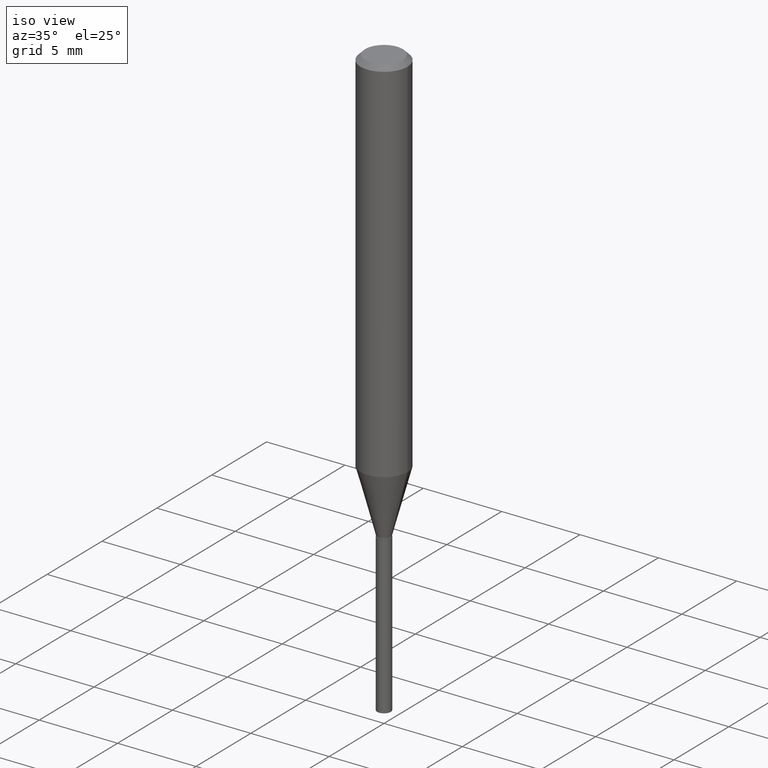
[diagram: clean part render]
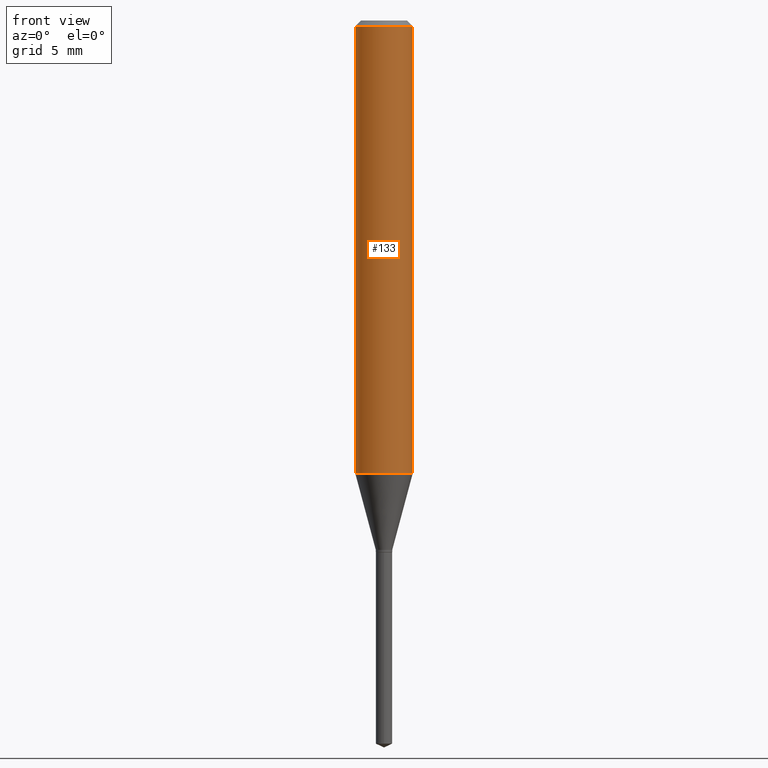
[diagram: tour spotlight — one face highlighted and labeled with its STEP entity id]
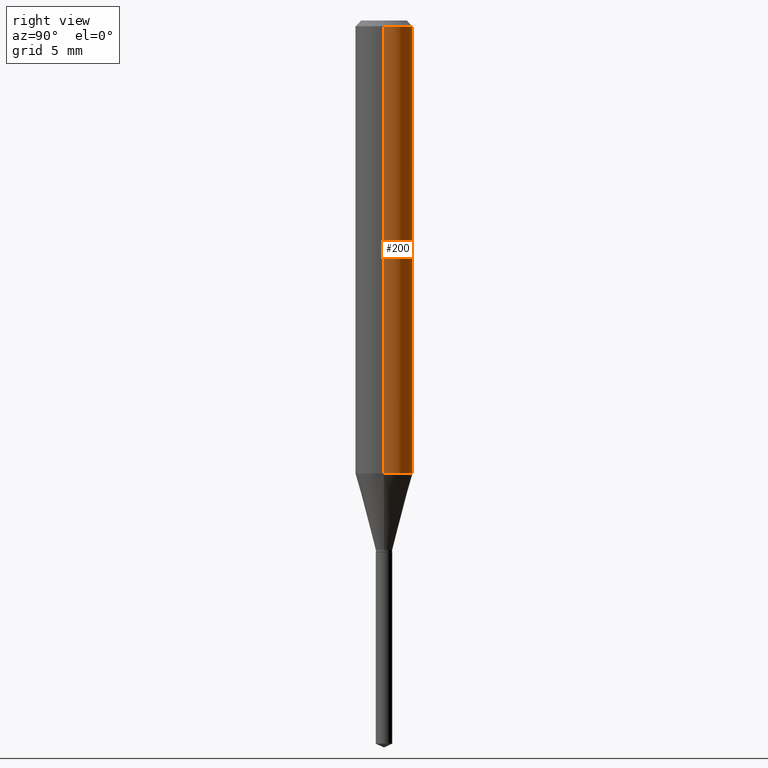
[diagram: tour spotlight — one face highlighted and labeled with its STEP entity id]
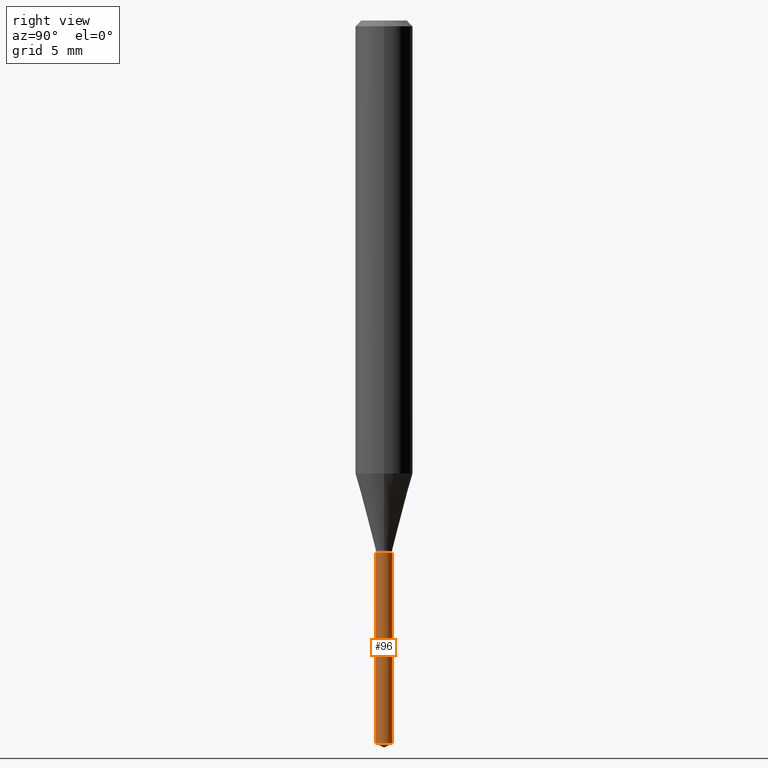
[diagram: tour spotlight — one face highlighted and labeled with its STEP entity id]
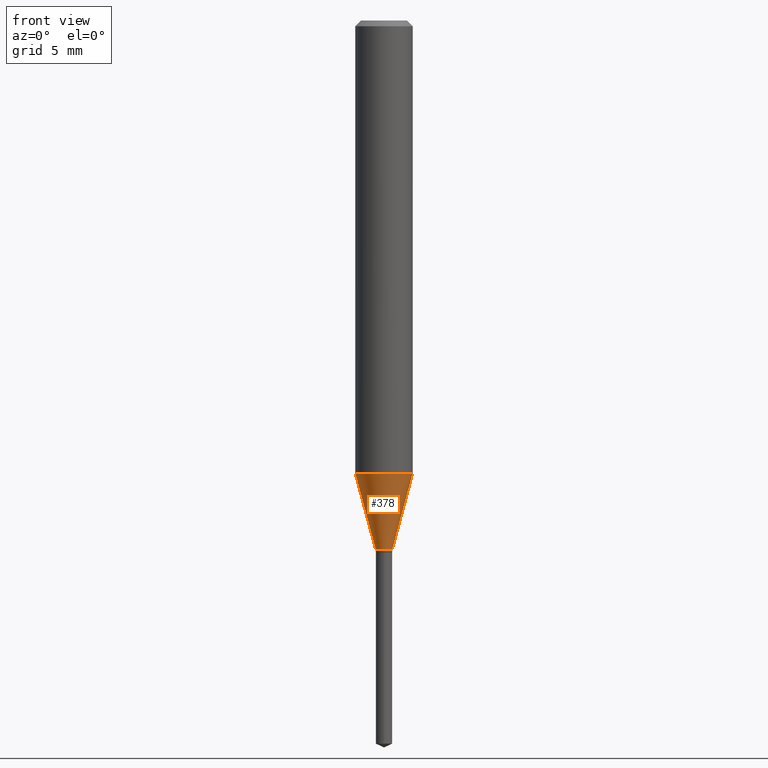
[diagram: tour spotlight — one face highlighted and labeled with its STEP entity id]
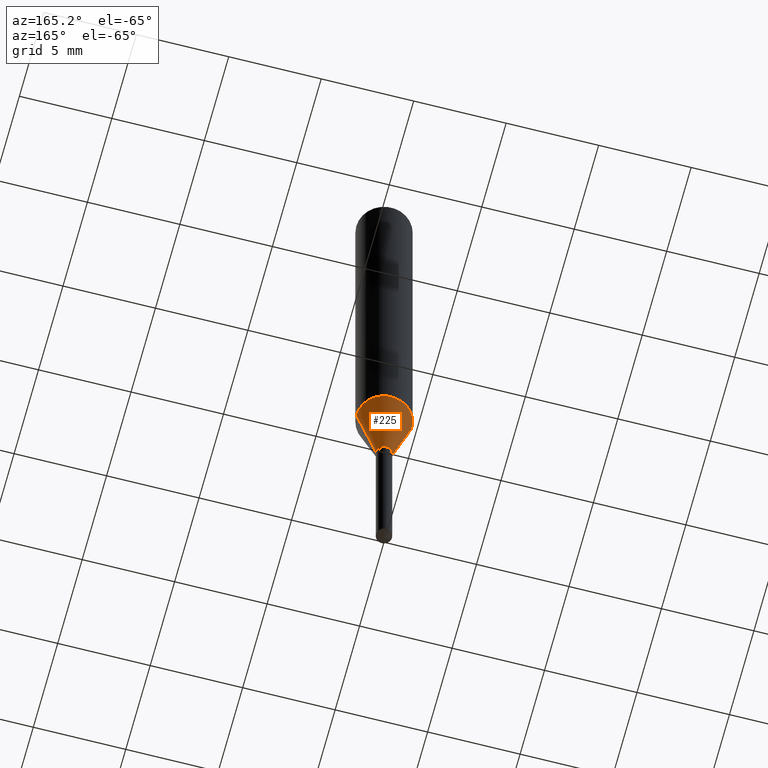
[diagram: tour spotlight — one face highlighted and labeled with its STEP entity id]
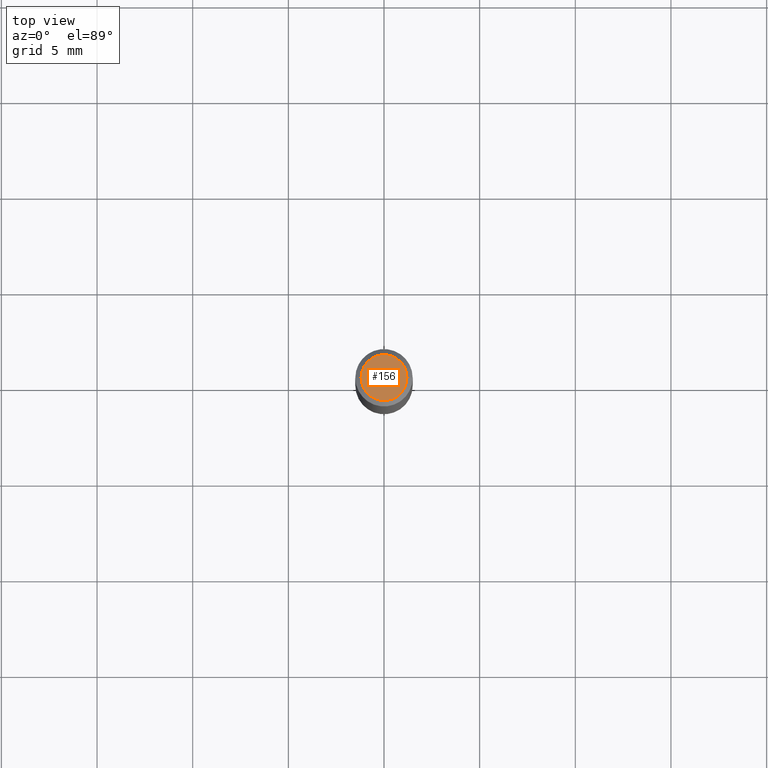
[diagram: tour spotlight — one face highlighted and labeled with its STEP entity id]
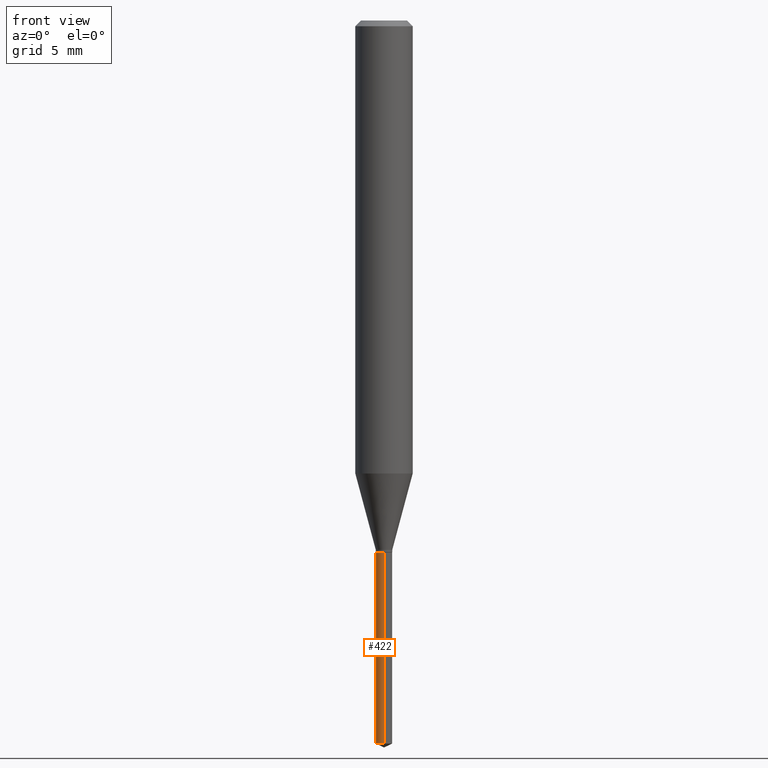
[diagram: tour spotlight — one face highlighted and labeled with its STEP entity id]
A machine part: a face-by-face anatomy tour. The part has 17 B-rep faces; the first image is the clean iso view, then the 7 largest visible faces are spotlighted one at a time (largest first), each with its STEP entity span.

Face 1 — front view, entity #133. In plain terms, the highlighted cylindrical surface (edge-blend (fillet) strip) has radius 1.4999 mm, axis along (-0, 0, 1).
Definition (entity closure, byte-faithful):
#14 = CARTESIAN_POINT ( 'NONE',  ( 0.000000000000000000, 0.000000000000000000, 0.000000000000000000 ) ) ;
#18 = FACE_OUTER_BOUND ( 'NONE', #229, .T. ) ;
#19 = CARTESIAN_POINT ( 'NONE',  ( -0.05905000000000006077, 4.195754854663395916E-16, -2.904631170795524694E-30 ) ) ;
#30 = DIRECTION ( 'NONE',  ( -2.445468806185136597E-29, 3.491481338843145583E-15, 1.000000000000000000 ) ) ;
#72 = CARTESIAN_POINT ( 'NONE',  ( 0.05905000000000006077, -4.123439461173744764E-16, 2.879382386107503023E-30 ) ) ;
#79 = DIRECTION ( 'NONE',  ( -2.445468806185136877E-29, 3.491481338843145188E-15, 1.000000000000000000 ) ) ;
#93 = CARTESIAN_POINT ( 'NONE',  ( 0.05905000000000011628, -3.667384476567939964E-15, -0.9322806610013497641 ) ) ;
#115 = VECTOR ( 'NONE', #122, 39.37007874015748143 ) ;
#119 = ORIENTED_EDGE ( 'NONE', *, *, #332, .F. ) ;
#122 = DIRECTION ( 'NONE',  ( -2.445468806185136877E-29, 3.491481338843145188E-15, 1.000000000000000000 ) ) ;
#133 = ADVANCED_FACE ( 'NONE', ( #18 ), #246, .T. ) ;
#143 = CARTESIAN_POINT ( 'NONE',  ( 2.888098660104663328E-31, -4.123439461173779030E-17, -0.01181000000000006871 ) ) ;
#155 = CIRCLE ( 'NONE', #414, 0.05904999999999999832 ) ;
#158 = ORIENTED_EDGE ( 'NONE', *, *, #439, .T. ) ;
#163 = CARTESIAN_POINT ( 'NONE',  ( 0.05904999999999999832, -4.535783407291118600E-16, -0.01181000000000006871 ) ) ;
#168 = EDGE_CURVE ( 'NONE', #298, #290, #303, .T. ) ;
#173 = VERTEX_POINT ( 'NONE', #163 ) ;
#185 = VERTEX_POINT ( 'NONE', #93 ) ;
#207 = VECTOR ( 'NONE', #79, 39.37007874015748143 ) ;
#224 = CARTESIAN_POINT ( 'NONE',  ( -0.05904999999999999832, -1.228561977064811302E-15, -0.01181000000000006871 ) ) ;
#229 = EDGE_LOOP ( 'NONE', ( #306, #387, #158, #119 ) ) ;
#233 = AXIS2_PLACEMENT_3D ( 'NONE', #14, #434, #292 ) ;
#246 = CYLINDRICAL_SURFACE ( 'NONE', #233, 0.05905000000000006077 ) ;
#261 = AXIS2_PLACEMENT_3D ( 'NONE', #264, #377, #347 ) ;
#264 = CARTESIAN_POINT ( 'NONE',  ( 2.279863275088461095E-29, -3.255040530450565438E-15, -0.9322806610013497641 ) ) ;
#275 = EDGE_CURVE ( 'NONE', #298, #185, #469, .T. ) ;
#290 = VERTEX_POINT ( 'NONE', #224 ) ;
#292 = DIRECTION ( 'NONE',  ( 1.000000000000000000, -6.982962677686266711E-15, 4.876176775795935793E-29 ) ) ;
#298 = VERTEX_POINT ( 'NONE', #490 ) ;
#303 = LINE ( 'NONE', #19, #115 ) ;
#306 = ORIENTED_EDGE ( 'NONE', *, *, #168, .F. ) ;
#316 = LINE ( 'NONE', #72, #207 ) ;
#332 = EDGE_CURVE ( 'NONE', #290, #173, #155, .T. ) ;
#347 = DIRECTION ( 'NONE',  ( 1.000000000000000000, -6.982962677686266711E-15, 0.000000000000000000 ) ) ;
#377 = DIRECTION ( 'NONE',  ( -2.445468806185136597E-29, 3.491481338843145583E-15, 1.000000000000000000 ) ) ;
#387 = ORIENTED_EDGE ( 'NONE', *, *, #275, .T. ) ;
#409 = DIRECTION ( 'NONE',  ( 1.000000000000000000, -6.982962677686266711E-15, 0.000000000000000000 ) ) ;
#414 = AXIS2_PLACEMENT_3D ( 'NONE', #143, #30, #409 ) ;
#434 = DIRECTION ( 'NONE',  ( -2.445468806185136597E-29, 3.491481338843145583E-15, 1.000000000000000000 ) ) ;
#439 = EDGE_CURVE ( 'NONE', #185, #173, #316, .T. ) ;
#469 = CIRCLE ( 'NONE', #261, 0.05905000000000011628 ) ;
#490 = CARTESIAN_POINT ( 'NONE',  ( -0.05905000000000011628, -2.835465044984225551E-15, -0.9322806610013497641 ) ) ;

Face 2 — right view, entity #200. In plain terms, the highlighted cylindrical surface (edge-blend (fillet) strip) has radius 1.4999 mm, axis along (-0, 0, 1).
Definition (entity closure, byte-faithful):
#19 = CARTESIAN_POINT ( 'NONE',  ( -0.05905000000000006077, 4.195754854663395916E-16, -2.904631170795524694E-30 ) ) ;
#21 = EDGE_LOOP ( 'NONE', ( #478, #363, #274, #94 ) ) ;
#50 = DIRECTION ( 'NONE',  ( 1.000000000000000000, -6.982962677686266711E-15, 4.876176775795935793E-29 ) ) ;
#53 = CIRCLE ( 'NONE', #250, 0.05904999999999999832 ) ;
#62 = AXIS2_PLACEMENT_3D ( 'NONE', #67, #305, #259 ) ;
#67 = CARTESIAN_POINT ( 'NONE',  ( 2.279863275088461095E-29, -3.255040530450565438E-15, -0.9322806610013497641 ) ) ;
#72 = CARTESIAN_POINT ( 'NONE',  ( 0.05905000000000006077, -4.123439461173744764E-16, 2.879382386107503023E-30 ) ) ;
#79 = DIRECTION ( 'NONE',  ( -2.445468806185136877E-29, 3.491481338843145188E-15, 1.000000000000000000 ) ) ;
#93 = CARTESIAN_POINT ( 'NONE',  ( 0.05905000000000011628, -3.667384476567939964E-15, -0.9322806610013497641 ) ) ;
#94 = ORIENTED_EDGE ( 'NONE', *, *, #439, .F. ) ;
#101 = DIRECTION ( 'NONE',  ( -2.445468806185136597E-29, 3.491481338843145583E-15, 1.000000000000000000 ) ) ;
#115 = VECTOR ( 'NONE', #122, 39.37007874015748143 ) ;
#122 = DIRECTION ( 'NONE',  ( -2.445468806185136877E-29, 3.491481338843145188E-15, 1.000000000000000000 ) ) ;
#163 = CARTESIAN_POINT ( 'NONE',  ( 0.05904999999999999832, -4.535783407291118600E-16, -0.01181000000000006871 ) ) ;
#168 = EDGE_CURVE ( 'NONE', #298, #290, #303, .T. ) ;
#172 = CARTESIAN_POINT ( 'NONE',  ( 2.888098660104663328E-31, -4.123439461173779030E-17, -0.01181000000000006871 ) ) ;
#173 = VERTEX_POINT ( 'NONE', #163 ) ;
#185 = VERTEX_POINT ( 'NONE', #93 ) ;
#200 = ADVANCED_FACE ( 'NONE', ( #328 ), #331, .T. ) ;
#207 = VECTOR ( 'NONE', #79, 39.37007874015748143 ) ;
#215 = AXIS2_PLACEMENT_3D ( 'NONE', #395, #399, #50 ) ;
#224 = CARTESIAN_POINT ( 'NONE',  ( -0.05904999999999999832, -1.228561977064811302E-15, -0.01181000000000006871 ) ) ;
#250 = AXIS2_PLACEMENT_3D ( 'NONE', #172, #101, #486 ) ;
#259 = DIRECTION ( 'NONE',  ( 1.000000000000000000, -6.982962677686266711E-15, 0.000000000000000000 ) ) ;
#274 = ORIENTED_EDGE ( 'NONE', *, *, #356, .F. ) ;
#290 = VERTEX_POINT ( 'NONE', #224 ) ;
#298 = VERTEX_POINT ( 'NONE', #490 ) ;
#303 = LINE ( 'NONE', #19, #115 ) ;
#304 = EDGE_CURVE ( 'NONE', #185, #298, #406, .T. ) ;
#305 = DIRECTION ( 'NONE',  ( -2.445468806185136597E-29, 3.491481338843145583E-15, 1.000000000000000000 ) ) ;
#316 = LINE ( 'NONE', #72, #207 ) ;
#328 = FACE_OUTER_BOUND ( 'NONE', #21, .T. ) ;
#331 = CYLINDRICAL_SURFACE ( 'NONE', #215, 0.05905000000000006077 ) ;
#356 = EDGE_CURVE ( 'NONE', #173, #290, #53, .T. ) ;
#363 = ORIENTED_EDGE ( 'NONE', *, *, #168, .T. ) ;
#395 = CARTESIAN_POINT ( 'NONE',  ( 0.000000000000000000, 0.000000000000000000, 0.000000000000000000 ) ) ;
#399 = DIRECTION ( 'NONE',  ( -2.445468806185136597E-29, 3.491481338843145583E-15, 1.000000000000000000 ) ) ;
#406 = CIRCLE ( 'NONE', #62, 0.05905000000000011628 ) ;
#439 = EDGE_CURVE ( 'NONE', #185, #173, #316, .T. ) ;
#478 = ORIENTED_EDGE ( 'NONE', *, *, #304, .T. ) ;
#486 = DIRECTION ( 'NONE',  ( 1.000000000000000000, -6.982962677686266711E-15, 0.000000000000000000 ) ) ;
#490 = CARTESIAN_POINT ( 'NONE',  ( -0.05905000000000011628, -2.835465044984225551E-15, -0.9322806610013497641 ) ) ;

Face 3 — right view, entity #96. In plain terms, the highlighted cylindrical surface (edge-blend (fillet) strip) has radius 0.4305 mm, axis along (-0, 0, 1).
Definition (entity closure, byte-faithful):
#20 = EDGE_CURVE ( 'NONE', #368, #341, #315, .T. ) ;
#27 = EDGE_CURVE ( 'NONE', #84, #368, #69, .T. ) ;
#28 = LINE ( 'NONE', #343, #100 ) ;
#69 = CIRCLE ( 'NONE', #147, 0.01694999999999999979 ) ;
#73 = DIRECTION ( 'NONE',  ( -2.445470214571802116E-29, 3.491479321953280158E-15, 1.000000000000000000 ) ) ;
#84 = VERTEX_POINT ( 'NONE', #279 ) ;
#96 = ADVANCED_FACE ( 'NONE', ( #117 ), #418, .T. ) ;
#100 = VECTOR ( 'NONE', #444, 39.37007874015748143 ) ;
#117 = FACE_OUTER_BOUND ( 'NONE', #334, .T. ) ;
#135 = DIRECTION ( 'NONE',  ( -6.982962677686265922E-15, -1.000000000000000000, 0.000000000000000000 ) ) ;
#147 = AXIS2_PLACEMENT_3D ( 'NONE', #320, #237, #353 ) ;
#162 = EDGE_CURVE ( 'NONE', #358, #341, #212, .T. ) ;
#212 = CIRCLE ( 'NONE', #348, 0.01694999999999999979 ) ;
#216 = ORIENTED_EDGE ( 'NONE', *, *, #352, .F. ) ;
#237 = DIRECTION ( 'NONE',  ( -2.445470214571802116E-29, 3.491479321953280158E-15, 1.000000000000000000 ) ) ;
#265 = VECTOR ( 'NONE', #419, 39.37007874015748143 ) ;
#279 = CARTESIAN_POINT ( 'NONE',  ( -1.183612173867458205E-16, -0.01695000000000520049, -1.488196085194272378 ) ) ;
#285 = ORIENTED_EDGE ( 'NONE', *, *, #27, .T. ) ;
#297 = CARTESIAN_POINT ( 'NONE',  ( 2.676565608369631794E-29, -3.821426325363822773E-15, -1.094499999999999806 ) ) ;
#311 = CARTESIAN_POINT ( 'NONE',  ( -1.183612173867554348E-16, -0.01695000000000382312, -1.094499999999999806 ) ) ;
#315 = LINE ( 'NONE', #426, #265 ) ;
#320 = CARTESIAN_POINT ( 'NONE',  ( 3.639337658305747829E-29, -5.196008065953581522E-15, -1.488196085194272378 ) ) ;
#334 = EDGE_LOOP ( 'NONE', ( #285, #433, #388, #216 ) ) ;
#341 = VERTEX_POINT ( 'NONE', #350 ) ;
#343 = CARTESIAN_POINT ( 'NONE',  ( -1.183612173867554348E-16, -0.01695000000000382312, -1.094499999999999806 ) ) ;
#348 = AXIS2_PLACEMENT_3D ( 'NONE', #297, #367, #135 ) ;
#350 = CARTESIAN_POINT ( 'NONE',  ( 1.204369937113734402E-16, 0.01694999999999617993, -1.094499999999999806 ) ) ;
#352 = EDGE_CURVE ( 'NONE', #84, #358, #28, .T. ) ;
#353 = DIRECTION ( 'NONE',  ( -6.982962677686265922E-15, -1.000000000000000000, 0.000000000000000000 ) ) ;
#358 = VERTEX_POINT ( 'NONE', #311 ) ;
#364 = DIRECTION ( 'NONE',  ( -6.982962677686265922E-15, -1.000000000000000000, 0.000000000000000000 ) ) ;
#367 = DIRECTION ( 'NONE',  ( -2.445470214571802116E-29, 3.491479321953280158E-15, 1.000000000000000000 ) ) ;
#368 = VERTEX_POINT ( 'NONE', #454 ) ;
#374 = AXIS2_PLACEMENT_3D ( 'NONE', #424, #73, #364 ) ;
#388 = ORIENTED_EDGE ( 'NONE', *, *, #162, .F. ) ;
#418 = CYLINDRICAL_SURFACE ( 'NONE', #374, 0.01694999999999999979 ) ;
#419 = DIRECTION ( 'NONE',  ( -2.445470214571802396E-29, 3.491479321953280158E-15, 1.000000000000000000 ) ) ;
#424 = CARTESIAN_POINT ( 'NONE',  ( 2.676565608369631794E-29, -3.821426325363822773E-15, -1.094499999999999806 ) ) ;
#426 = CARTESIAN_POINT ( 'NONE',  ( 1.204369937113637273E-16, 0.01694999999999617646, -1.094499999999999806 ) ) ;
#433 = ORIENTED_EDGE ( 'NONE', *, *, #20, .T. ) ;
#444 = DIRECTION ( 'NONE',  ( -2.445470214571802396E-29, 3.491479321953280158E-15, 1.000000000000000000 ) ) ;
#454 = CARTESIAN_POINT ( 'NONE',  ( 1.204369937113733662E-16, 0.01694999999999480603, -1.488196085194272378 ) ) ;

Face 4 — front view, entity #378. In plain terms, the highlighted conical surface has half-angle 15 deg.
Definition (entity closure, byte-faithful):
#3 = EDGE_LOOP ( 'NONE', ( #52, #10, #251, #330 ) ) ;
#10 = ORIENTED_EDGE ( 'NONE', *, *, #416, .T. ) ;
#26 = VERTEX_POINT ( 'NONE', #154 ) ;
#52 = ORIENTED_EDGE ( 'NONE', *, *, #383, .F. ) ;
#64 = CARTESIAN_POINT ( 'NONE',  ( 2.664093717458087237E-29, -3.803619770535721859E-15, -1.089399999999999924 ) ) ;
#70 = CARTESIAN_POINT ( 'NONE',  ( 2.664093717458087237E-29, -3.803619770535721859E-15, -1.089399999999999924 ) ) ;
#85 = CONICAL_SURFACE ( 'NONE', #447, 0.01694999999999995469, 0.2617993877991499074 ) ;
#93 = CARTESIAN_POINT ( 'NONE',  ( 0.05905000000000011628, -3.667384476567939964E-15, -0.9322806610013497641 ) ) ;
#97 = CARTESIAN_POINT ( 'NONE',  ( 0.01694999999999995469, -3.921980987922503745E-15, -1.089399999999999924 ) ) ;
#138 = DIRECTION ( 'NONE',  ( 1.000000000000000000, -6.982962677686274599E-15, 0.000000000000000000 ) ) ;
#154 = CARTESIAN_POINT ( 'NONE',  ( 0.01694999999999995469, -3.921980987922503745E-15, -1.089399999999999924 ) ) ;
#160 = VERTEX_POINT ( 'NONE', #170 ) ;
#170 = CARTESIAN_POINT ( 'NONE',  ( -0.01694999999999995469, -3.691213183903725225E-15, -1.089399999999999924 ) ) ;
#178 = LINE ( 'NONE', #270, #428 ) ;
#185 = VERTEX_POINT ( 'NONE', #93 ) ;
#218 = LINE ( 'NONE', #97, #376 ) ;
#227 = FACE_OUTER_BOUND ( 'NONE', #3, .T. ) ;
#242 = EDGE_CURVE ( 'NONE', #26, #185, #218, .T. ) ;
#251 = ORIENTED_EDGE ( 'NONE', *, *, #242, .T. ) ;
#261 = AXIS2_PLACEMENT_3D ( 'NONE', #264, #377, #347 ) ;
#264 = CARTESIAN_POINT ( 'NONE',  ( 2.279863275088461095E-29, -3.255040530450565438E-15, -0.9322806610013497641 ) ) ;
#266 = DIRECTION ( 'NONE',  ( -2.445468806185136597E-29, 3.491481338843145583E-15, 1.000000000000000000 ) ) ;
#270 = CARTESIAN_POINT ( 'NONE',  ( -0.01694999999999995469, -3.683182776824385520E-15, -1.089399999999999924 ) ) ;
#275 = EDGE_CURVE ( 'NONE', #298, #185, #469, .T. ) ;
#276 = AXIS2_PLACEMENT_3D ( 'NONE', #70, #484, #138 ) ;
#298 = VERTEX_POINT ( 'NONE', #490 ) ;
#310 = DIRECTION ( 'NONE',  ( -0.2588190451025211836, 5.211531920934547886E-15, 0.9659258262890679791 ) ) ;
#330 = ORIENTED_EDGE ( 'NONE', *, *, #275, .F. ) ;
#347 = DIRECTION ( 'NONE',  ( 1.000000000000000000, -6.982962677686266711E-15, 0.000000000000000000 ) ) ;
#376 = VECTOR ( 'NONE', #480, 39.37007874015748854 ) ;
#377 = DIRECTION ( 'NONE',  ( -2.445468806185136597E-29, 3.491481338843145583E-15, 1.000000000000000000 ) ) ;
#378 = ADVANCED_FACE ( 'NONE', ( #227 ), #85, .T. ) ;
#383 = EDGE_CURVE ( 'NONE', #160, #298, #178, .T. ) ;
#386 = CIRCLE ( 'NONE', #276, 0.01694999999999995469 ) ;
#407 = DIRECTION ( 'NONE',  ( 1.000000000000000000, -6.982962677686274599E-15, 0.000000000000000000 ) ) ;
#416 = EDGE_CURVE ( 'NONE', #160, #26, #386, .T. ) ;
#428 = VECTOR ( 'NONE', #310, 39.37007874015748854 ) ;
#447 = AXIS2_PLACEMENT_3D ( 'NONE', #64, #266, #407 ) ;
#469 = CIRCLE ( 'NONE', #261, 0.05905000000000011628 ) ;
#480 = DIRECTION ( 'NONE',  ( 0.2588190451025211836, 1.565188264969622559E-15, 0.9659258262890679791 ) ) ;
#484 = DIRECTION ( 'NONE',  ( -2.445468806185136597E-29, 3.491481338843145583E-15, 1.000000000000000000 ) ) ;
#490 = CARTESIAN_POINT ( 'NONE',  ( -0.05905000000000011628, -2.835465044984225551E-15, -0.9322806610013497641 ) ) ;

Face 5 — auxiliary view, entity #225. In plain terms, the highlighted conical surface has half-angle 15 deg.
Definition (entity closure, byte-faithful):
#7 = ORIENTED_EDGE ( 'NONE', *, *, #349, .T. ) ;
#26 = VERTEX_POINT ( 'NONE', #154 ) ;
#62 = AXIS2_PLACEMENT_3D ( 'NONE', #67, #305, #259 ) ;
#67 = CARTESIAN_POINT ( 'NONE',  ( 2.279863275088461095E-29, -3.255040530450565438E-15, -0.9322806610013497641 ) ) ;
#93 = CARTESIAN_POINT ( 'NONE',  ( 0.05905000000000011628, -3.667384476567939964E-15, -0.9322806610013497641 ) ) ;
#97 = CARTESIAN_POINT ( 'NONE',  ( 0.01694999999999995469, -3.921980987922503745E-15, -1.089399999999999924 ) ) ;
#128 = ORIENTED_EDGE ( 'NONE', *, *, #383, .T. ) ;
#130 = ORIENTED_EDGE ( 'NONE', *, *, #304, .F. ) ;
#131 = CARTESIAN_POINT ( 'NONE',  ( 2.664093717458087237E-29, -3.803619770535721859E-15, -1.089399999999999924 ) ) ;
#144 = DIRECTION ( 'NONE',  ( -2.445468806185136597E-29, 3.491481338843145583E-15, 1.000000000000000000 ) ) ;
#149 = EDGE_LOOP ( 'NONE', ( #7, #128, #130, #317 ) ) ;
#154 = CARTESIAN_POINT ( 'NONE',  ( 0.01694999999999995469, -3.921980987922503745E-15, -1.089399999999999924 ) ) ;
#160 = VERTEX_POINT ( 'NONE', #170 ) ;
#170 = CARTESIAN_POINT ( 'NONE',  ( -0.01694999999999995469, -3.691213183903725225E-15, -1.089399999999999924 ) ) ;
#177 = DIRECTION ( 'NONE',  ( 1.000000000000000000, -6.982962677686274599E-15, 0.000000000000000000 ) ) ;
#178 = LINE ( 'NONE', #270, #428 ) ;
#185 = VERTEX_POINT ( 'NONE', #93 ) ;
#217 = DIRECTION ( 'NONE',  ( -2.445468806185136597E-29, 3.491481338843145583E-15, 1.000000000000000000 ) ) ;
#218 = LINE ( 'NONE', #97, #376 ) ;
#225 = ADVANCED_FACE ( 'NONE', ( #301 ), #333, .T. ) ;
#242 = EDGE_CURVE ( 'NONE', #26, #185, #218, .T. ) ;
#259 = DIRECTION ( 'NONE',  ( 1.000000000000000000, -6.982962677686266711E-15, 0.000000000000000000 ) ) ;
#269 = AXIS2_PLACEMENT_3D ( 'NONE', #344, #144, #177 ) ;
#270 = CARTESIAN_POINT ( 'NONE',  ( -0.01694999999999995469, -3.683182776824385520E-15, -1.089399999999999924 ) ) ;
#298 = VERTEX_POINT ( 'NONE', #490 ) ;
#301 = FACE_OUTER_BOUND ( 'NONE', #149, .T. ) ;
#304 = EDGE_CURVE ( 'NONE', #185, #298, #406, .T. ) ;
#305 = DIRECTION ( 'NONE',  ( -2.445468806185136597E-29, 3.491481338843145583E-15, 1.000000000000000000 ) ) ;
#310 = DIRECTION ( 'NONE',  ( -0.2588190451025211836, 5.211531920934547886E-15, 0.9659258262890679791 ) ) ;
#317 = ORIENTED_EDGE ( 'NONE', *, *, #242, .F. ) ;
#333 = CONICAL_SURFACE ( 'NONE', #362, 0.01694999999999995469, 0.2617993877991499074 ) ;
#335 = DIRECTION ( 'NONE',  ( 1.000000000000000000, -6.982962677686274599E-15, 0.000000000000000000 ) ) ;
#344 = CARTESIAN_POINT ( 'NONE',  ( 2.664093717458087237E-29, -3.803619770535721859E-15, -1.089399999999999924 ) ) ;
#346 = CIRCLE ( 'NONE', #269, 0.01694999999999995469 ) ;
#349 = EDGE_CURVE ( 'NONE', #26, #160, #346, .T. ) ;
#362 = AXIS2_PLACEMENT_3D ( 'NONE', #131, #217, #335 ) ;
#376 = VECTOR ( 'NONE', #480, 39.37007874015748854 ) ;
#383 = EDGE_CURVE ( 'NONE', #160, #298, #178, .T. ) ;
#406 = CIRCLE ( 'NONE', #62, 0.05905000000000011628 ) ;
#428 = VECTOR ( 'NONE', #310, 39.37007874015748854 ) ;
#480 = DIRECTION ( 'NONE',  ( 0.2588190451025211836, 1.565188264969622559E-15, 0.9659258262890679791 ) ) ;
#490 = CARTESIAN_POINT ( 'NONE',  ( -0.05905000000000011628, -2.835465044984225551E-15, -0.9322806610013497641 ) ) ;

Face 6 — top view, entity #156. In plain terms, the highlighted planar face has unit normal (0, -0, -1).
Definition (entity closure, byte-faithful):
#11 = DIRECTION ( 'NONE',  ( -2.445468806185136597E-29, 3.491481338843145583E-15, 1.000000000000000000 ) ) ;
#25 = CARTESIAN_POINT ( 'NONE',  ( 8.265746106709734507E-48, -1.180129479067563789E-33, -3.380025165646692144E-19 ) ) ;
#51 = PLANE ( 'NONE',  #450 ) ;
#81 = EDGE_CURVE ( 'NONE', #393, #247, #142, .T. ) ;
#142 = CIRCLE ( 'NONE', #420, 0.04724000000000000421 ) ;
#156 = ADVANCED_FACE ( 'NONE', ( #443 ), #51, .F. ) ;
#166 = CARTESIAN_POINT ( 'NONE',  ( 4.132873053354867254E-48, -5.900647395337818946E-34, -1.690012582823346072E-19 ) ) ;
#175 = ORIENTED_EDGE ( 'NONE', *, *, #260, .T. ) ;
#189 = CARTESIAN_POINT ( 'NONE',  ( 8.265746106709734507E-48, -1.180129479067563789E-33, -3.380025165646692144E-19 ) ) ;
#205 = DIRECTION ( 'NONE',  ( -1.000000000000000000, 6.982962677686265922E-15, -4.876176775795935793E-29 ) ) ;
#247 = VERTEX_POINT ( 'NONE', #256 ) ;
#256 = CARTESIAN_POINT ( 'NONE',  ( 0.04724000000000000421, -3.852183633974369345E-16, -3.380025165621689721E-19 ) ) ;
#260 = EDGE_CURVE ( 'NONE', #247, #393, #295, .T. ) ;
#293 = EDGE_LOOP ( 'NONE', ( #355, #175 ) ) ;
#295 = CIRCLE ( 'NONE', #384, 0.04724000000000000421 ) ;
#325 = DIRECTION ( 'NONE',  ( -2.445468806185136597E-29, 3.491481338843145583E-15, 1.000000000000000000 ) ) ;
#355 = ORIENTED_EDGE ( 'NONE', *, *, #81, .T. ) ;
#372 = DIRECTION ( 'NONE',  ( 2.438088387897960049E-29, -3.491481338843145188E-15, -1.000000000000000000 ) ) ;
#384 = AXIS2_PLACEMENT_3D ( 'NONE', #25, #325, #470 ) ;
#393 = VERTEX_POINT ( 'NONE', #446 ) ;
#420 = AXIS2_PLACEMENT_3D ( 'NONE', #189, #11, #457 ) ;
#443 = FACE_OUTER_BOUND ( 'NONE', #293, .T. ) ;
#446 = CARTESIAN_POINT ( 'NONE',  ( -0.04724000000000000421, 3.504923541997677355E-16, -3.380025165670481712E-19 ) ) ;
#450 = AXIS2_PLACEMENT_3D ( 'NONE', #166, #372, #205 ) ;
#457 = DIRECTION ( 'NONE',  ( 1.000000000000000000, -6.982962677686266711E-15, 4.876185090822587894E-29 ) ) ;
#470 = DIRECTION ( 'NONE',  ( 1.000000000000000000, -6.982962677686266711E-15, 4.876185090822587894E-29 ) ) ;

Face 7 — front view, entity #422. In plain terms, the highlighted cylindrical surface (edge-blend (fillet) strip) has radius 0.4305 mm, axis along (-0, 0, 1).
Definition (entity closure, byte-faithful):
#20 = EDGE_CURVE ( 'NONE', #368, #341, #315, .T. ) ;
#28 = LINE ( 'NONE', #343, #100 ) ;
#31 = DIRECTION ( 'NONE',  ( -6.982962677686265922E-15, -1.000000000000000000, 0.000000000000000000 ) ) ;
#40 = AXIS2_PLACEMENT_3D ( 'NONE', #129, #89, #483 ) ;
#43 = ORIENTED_EDGE ( 'NONE', *, *, #352, .T. ) ;
#65 = CYLINDRICAL_SURFACE ( 'NONE', #351, 0.01694999999999999979 ) ;
#84 = VERTEX_POINT ( 'NONE', #279 ) ;
#89 = DIRECTION ( 'NONE',  ( -2.445470214571802116E-29, 3.491479321953280158E-15, 1.000000000000000000 ) ) ;
#90 = ORIENTED_EDGE ( 'NONE', *, *, #104, .F. ) ;
#100 = VECTOR ( 'NONE', #444, 39.37007874015748143 ) ;
#104 = EDGE_CURVE ( 'NONE', #341, #358, #187, .T. ) ;
#114 = EDGE_CURVE ( 'NONE', #368, #84, #280, .T. ) ;
#129 = CARTESIAN_POINT ( 'NONE',  ( 2.676565608369631794E-29, -3.821426325363822773E-15, -1.094499999999999806 ) ) ;
#187 = CIRCLE ( 'NONE', #40, 0.01694999999999999979 ) ;
#199 = EDGE_LOOP ( 'NONE', ( #438, #385, #43, #90 ) ) ;
#222 = FACE_OUTER_BOUND ( 'NONE', #199, .T. ) ;
#223 = CARTESIAN_POINT ( 'NONE',  ( 2.676565608369631794E-29, -3.821426325363822773E-15, -1.094499999999999806 ) ) ;
#265 = VECTOR ( 'NONE', #419, 39.37007874015748143 ) ;
#279 = CARTESIAN_POINT ( 'NONE',  ( -1.183612173867458205E-16, -0.01695000000000520049, -1.488196085194272378 ) ) ;
#280 = CIRCLE ( 'NONE', #359, 0.01694999999999999979 ) ;
#311 = CARTESIAN_POINT ( 'NONE',  ( -1.183612173867554348E-16, -0.01695000000000382312, -1.094499999999999806 ) ) ;
#315 = LINE ( 'NONE', #426, #265 ) ;
#336 = CARTESIAN_POINT ( 'NONE',  ( 3.639337658305747829E-29, -5.196008065953581522E-15, -1.488196085194272378 ) ) ;
#341 = VERTEX_POINT ( 'NONE', #350 ) ;
#343 = CARTESIAN_POINT ( 'NONE',  ( -1.183612173867554348E-16, -0.01695000000000382312, -1.094499999999999806 ) ) ;
#350 = CARTESIAN_POINT ( 'NONE',  ( 1.204369937113734402E-16, 0.01694999999999617993, -1.094499999999999806 ) ) ;
#351 = AXIS2_PLACEMENT_3D ( 'NONE', #223, #379, #31 ) ;
#352 = EDGE_CURVE ( 'NONE', #84, #358, #28, .T. ) ;
#358 = VERTEX_POINT ( 'NONE', #311 ) ;
#359 = AXIS2_PLACEMENT_3D ( 'NONE', #336, #397, #404 ) ;
#368 = VERTEX_POINT ( 'NONE', #454 ) ;
#379 = DIRECTION ( 'NONE',  ( -2.445470214571802116E-29, 3.491479321953280158E-15, 1.000000000000000000 ) ) ;
#385 = ORIENTED_EDGE ( 'NONE', *, *, #114, .T. ) ;
#397 = DIRECTION ( 'NONE',  ( -2.445470214571802116E-29, 3.491479321953280158E-15, 1.000000000000000000 ) ) ;
#404 = DIRECTION ( 'NONE',  ( -6.982962677686265922E-15, -1.000000000000000000, 0.000000000000000000 ) ) ;
#419 = DIRECTION ( 'NONE',  ( -2.445470214571802396E-29, 3.491479321953280158E-15, 1.000000000000000000 ) ) ;
#422 = ADVANCED_FACE ( 'NONE', ( #222 ), #65, .T. ) ;
#426 = CARTESIAN_POINT ( 'NONE',  ( 1.204369937113637273E-16, 0.01694999999999617646, -1.094499999999999806 ) ) ;
#438 = ORIENTED_EDGE ( 'NONE', *, *, #20, .F. ) ;
#444 = DIRECTION ( 'NONE',  ( -2.445470214571802396E-29, 3.491479321953280158E-15, 1.000000000000000000 ) ) ;
#454 = CARTESIAN_POINT ( 'NONE',  ( 1.204369937113733662E-16, 0.01694999999999480603, -1.488196085194272378 ) ) ;
#483 = DIRECTION ( 'NONE',  ( -6.982962677686265922E-15, -1.000000000000000000, 0.000000000000000000 ) ) ;